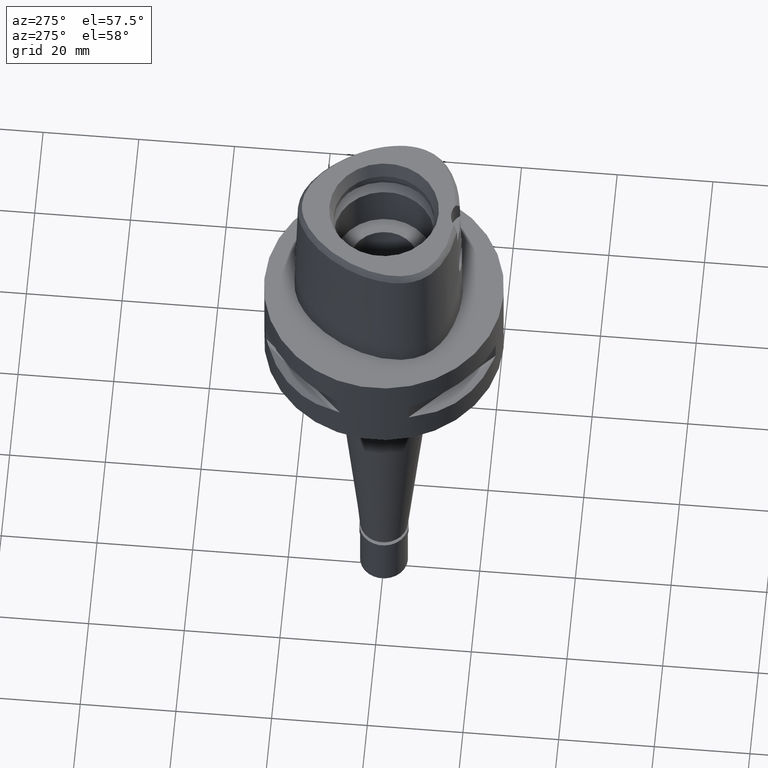
[diagram: clean part render]
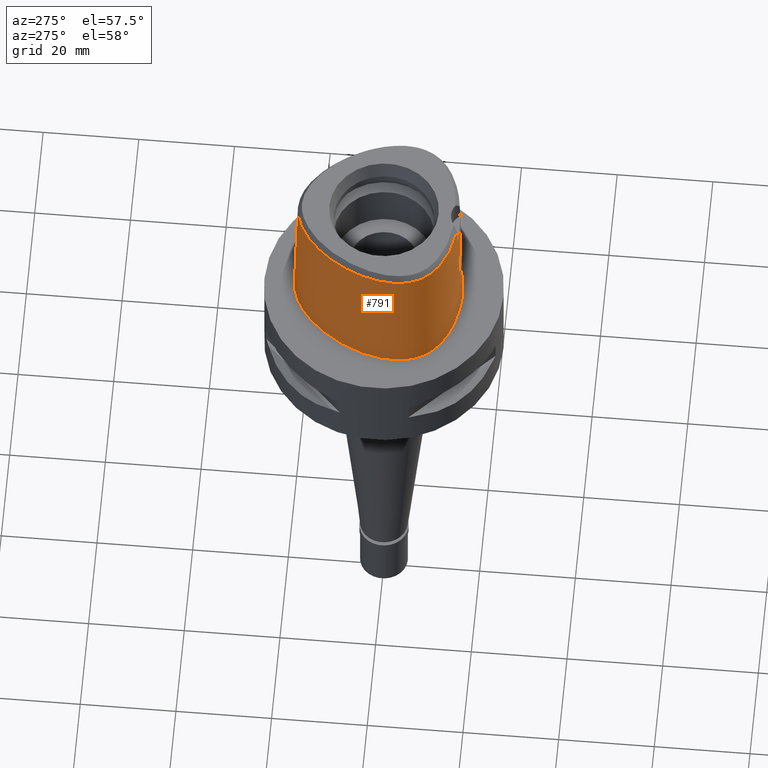
[diagram: same view with one face highlighted and labeled with its STEP entity id]
A machine part, auxiliary view. The second image highlights one B-rep face of the part: STEP entity #791.
In plain terms, the highlighted face is a freeform B-spline surface patch.
Its self-contained STEP definition (entity closure, byte-faithful):
#10 = CARTESIAN_POINT ( 'NONE',  ( -2.909137552898870105, -15.97627371699419641, 13.08234413149512854 ) ) ;
#34 = CARTESIAN_POINT ( 'NONE',  ( -1.489022098419195084, -16.13222843889010960, 11.33656707562938237 ) ) ;
#98 = CARTESIAN_POINT ( 'NONE',  ( 0.5455910026251999945, 18.19844126409000040, 19.20396003619000069 ) ) ;
#117 = CARTESIAN_POINT ( 'NONE',  ( -14.61870768872000070, -11.12154150887000092, 9.316772690826001124 ) ) ;
#125 = CARTESIAN_POINT ( 'NONE',  ( -0.4893119563082999890, 18.72969240675000080, -0.5704146545403999680 ) ) ;
#140 = CARTESIAN_POINT ( 'NONE',  ( -11.33338053121714850, -13.08225253589606574, 28.52071192347005635 ) ) ;
#149 = CARTESIAN_POINT ( 'NONE',  ( -10.90668507664999964, 11.98047076235999953, 29.09114738155999547 ) ) ;
#160 = CARTESIAN_POINT ( 'NONE',  ( -2.169052023958372821, -15.77399788493553601, 24.70000016923101427 ) ) ;
#166 = CARTESIAN_POINT ( 'NONE',  ( -13.75951393052431904, 7.944084103041955558, 28.52071192347005635 ) ) ;
#177 = CARTESIAN_POINT ( 'NONE',  ( -15.57503092496000008, -8.992248296096999383, 29.09114738155999547 ) ) ;
#191 = CARTESIAN_POINT ( 'NONE',  ( -1.671121799477684799, -15.99125384014662998, 16.55147925626985028 ) ) ;
#201 = CARTESIAN_POINT ( 'NONE',  ( 0.3838142945827999752, 18.70350312408000093, -0.5704146545403999680 ) ) ;
#214 = CARTESIAN_POINT ( 'NONE',  ( -5.051093166673528145, -16.15562499497977456, 2.029682833479609649E-07 ) ) ;
#233 = CARTESIAN_POINT ( 'NONE',  ( -2.030787586191847627, -15.97439197203208749, 16.27657083949370431 ) ) ;
#252 = ORIENTED_EDGE ( 'NONE', *, *, #2466, .F. ) ;
#260 = CARTESIAN_POINT ( 'NONE',  ( -2.663989615084545459, -15.94049756288791464, 15.48802251321090040 ) ) ;
#262 = CARTESIAN_POINT ( 'NONE',  ( -16.85489160761226657, -5.354527567565032342, 28.52071192347005635 ) ) ;
#281 = CARTESIAN_POINT ( 'NONE',  ( -2.816407481552833936, -15.93333177460183236, 15.17063687595672228 ) ) ;
#335 = VECTOR ( 'NONE', #1950, 1000.000000000000227 ) ;
#347 = B_SPLINE_CURVE_WITH_KNOTS ( 'NONE', 3,
 ( #4637, #2793, #160, #2408 ),
 .UNSPECIFIED., .F., .F.,
 ( 4, 4 ),
 ( 0.0000000000000000000, 1.000000000000000000 ),
 .UNSPECIFIED. ) ;
#357 = CARTESIAN_POINT ( 'NONE',  ( -1.185240961618587940, -16.15026635704341729, 11.18970954940020057 ) ) ;
#380 = CARTESIAN_POINT ( 'NONE',  ( -1.824495776585495221, -16.10763072133384100, 11.54770719424339376 ) ) ;
#381 = B_SPLINE_CURVE_WITH_KNOTS ( 'NONE', 3,
 ( #1035, #2798, #4642, #4624, #2458, #4267, #2162, #2437, #3225, #3247, #1679, #3200, #1326, #2528, #2480, #1351, #651, #2850, #4708, #191, #4317, #965, #602, #1008, #233, #1721, #4336, #2117, #3625, #985, #4686, #3957, #260, #1750, #2870, #2895, #2504, #3982, #2140, #281, #1771, #1397, #1898, #3365, #1870, #763, #4075, #4454, #3319, #4118, #1468, #4734, #10, #3713, #3341, #3388, #2252, #2969, #2547, #1520, #2944, #1445, #1424, #2572, #4027, #4404, #695, #1498, #1085, #1134, #2210, #1798, #2185, #4431, #3736, #4053, #3645, #380, #721, #34, #3694, #3012, #2992, #4384, #357, #2621, #4476, #1847, #1826, #1114 ),
 .UNSPECIFIED., .F., .F.,
 ( 4, 2, 2, 1, 1, 1, 2, 2, 2, 2, 1, 2, 2, 2, 1, 1, 2, 2, 2, 2, 1, 1, 1, 2, 2, 2, 2, 2, 2, 2, 2, 1, 1, 1, 2, 2, 2, 2, 1, 2, 2, 2, 1, 1, 2, 2, 2, 2, 1, 1, 1, 2, 2, 4 ),
 ( 0.0000000000000000000, 0.06250000000000736911, 0.09375000000001104672, 0.1093750000000127537, 0.1171875000000137945, 0.1210937500000142802, 0.1230468750000145439, 0.1250000000000148215, 0.1562500000000162648, 0.1718750000000169864, 0.1796875000000173195, 0.1835937500000175138, 0.1875000000000176803, 0.2187500000000204003, 0.2343750000000213718, 0.2421875000000217881, 0.2460937500000216771, 0.2500000000000215938, 0.3125000000000265343, 0.3437500000000289768, 0.3593750000000301981, 0.3671875000000308642, 0.3710937500000308642, 0.3730468750000309197, 0.3750000000000309752, 0.4375000000000368594, 0.4687500000000398570, 0.4843750000000410227, 0.5000000000000421885, 0.5625000000000462963, 0.5937500000000484057, 0.6093750000000496270, 0.6171875000000502931, 0.6210937500000507372, 0.6230468750000508482, 0.6250000000000509592, 0.6562500000000468514, 0.6718750000000450751, 0.6796875000000439648, 0.6835937500000434097, 0.6875000000000428546, 0.7187500000000383027, 0.7343750000000360822, 0.7421875000000348610, 0.7460937500000341949, 0.7500000000000335287, 0.8125000000000281997, 0.8437500000000254241, 0.8593750000000240918, 0.8671875000000232037, 0.8710937500000227596, 0.8730468750000225375, 0.8750000000000223155, 1.000000000000000000 ),
 .UNSPECIFIED. ) ;
#422 = EDGE_CURVE ( 'NONE', #3466, #439, #347, .T. ) ;
#439 = VERTEX_POINT ( 'NONE', #1320 ) ;
#462 = CARTESIAN_POINT ( 'NONE',  ( -5.053620743671999982, -16.16974068377000151, -0.5704146545403999680 ) ) ;
#468 = VERTEX_POINT ( 'NONE', #1226 ) ;
#469 = CARTESIAN_POINT ( 'NONE',  ( -17.51166498438000119, -0.2260900530588000057, -0.5704146545403999680 ) ) ;
#498 = CARTESIAN_POINT ( 'NONE',  ( -11.47659488421999896, 12.46143684779999994, -0.5704146545403999680 ) ) ;
#523 = CARTESIAN_POINT ( 'NONE',  ( -16.21839714699000012, -9.363695958655000595, -0.5704146545403999680 ) ) ;
#546 = CARTESIAN_POINT ( 'NONE',  ( -1.941729206885999925, 18.07741838335000395, 19.20396003619000069 ) ) ;
#562 = CARTESIAN_POINT ( 'NONE',  ( -17.56373942428971446, -5.455996093027935423, 2.029682833479609649E-07 ) ) ;
#571 = CARTESIAN_POINT ( 'NONE',  ( -15.82879756526999948, 3.455165209950000094, 29.09114738155999547 ) ) ;
#602 = CARTESIAN_POINT ( 'NONE',  ( -1.858121229639992933, -15.98284882596957068, 16.42071856142328201 ) ) ;
#603 = CARTESIAN_POINT ( 'NONE',  ( -4.422474562381692564, 17.08283562090188212, 28.52071192347005635 ) ) ;
#651 = CARTESIAN_POINT ( 'NONE',  ( -1.578081282708124311, -15.99520688258736634, 16.61014732800849814 ) ) ;
#695 = CARTESIAN_POINT ( 'NONE',  ( -2.552453281223090453, -16.03022206925511384, 12.33036638904189353 ) ) ;
#711 = CARTESIAN_POINT ( 'NONE',  ( 1.070056061385999957, -15.95437369807999772, 19.20396003619000069 ) ) ;
#721 = CARTESIAN_POINT ( 'NONE',  ( -1.572520811367552396, -16.12649376600628059, 11.38472095010840235 ) ) ;
#763 = CARTESIAN_POINT ( 'NONE',  ( -3.044373801969868065, -15.93377869067413144, 14.19140803545041685 ) ) ;
#770 = ORIENTED_EDGE ( 'NONE', *, *, #1128, .T. ) ;
#791 = ADVANCED_FACE ( 'NONE', ( #3854 ), #887, .T. ) ;
#849 = CARTESIAN_POINT ( 'NONE',  ( -14.43869630108000024, -10.95090977785999975, 19.20396003619000069 ) ) ;
#850 = VERTEX_POINT ( 'NONE', #3771 ) ;
#858 = CARTESIAN_POINT ( 'NONE',  ( -17.72574105905000152, -3.269125760301000216, -0.5704146545403999680 ) ) ;
#875 = CARTESIAN_POINT ( 'NONE',  ( -3.168920966622999824, -15.55911077538999976, 28.52071192346999950 ) ) ;
#876 = CARTESIAN_POINT ( 'NONE',  ( -14.78833380030080491, -11.28232909805913664, 2.029682833479609649E-07 ) ) ;
#878 = CARTESIAN_POINT ( 'NONE',  ( -8.697311552745000895, -14.35163119880000160, 29.09114738155999547 ) ) ;
#885 = CARTESIAN_POINT ( 'NONE',  ( -1.890839663910000024, 17.83402859062000090, 29.09114738155999547 ) ) ;
#887 = B_SPLINE_SURFACE_WITH_KNOTS ( 'NONE', 3, 3, ( 
 ( #3881, #1611, #98, #2741 ),
 ( #201, #1589, #4212, #1641 ),
 ( #125, #955, #1314, #3137 ),
 ( #1243, #3805, #546, #885 ),
 ( #2384, #3079, #2713, #2811 ),
 ( #4566, #4256, #4541, #4279 ),
 ( #498, #2787, #1271, #149 ),
 ( #1219, #3450, #1670, #2768 ),
 ( #1291, #3190, #2064, #571 ),
 ( #469, #4188, #2014, #2040 ),
 ( #858, #1992, #4631, #4238 ),
 ( #2354, #3834, #3529, #4587 ),
 ( #3478, #1966, #4612, #3502 ),
 ( #3104, #1689, #2425, #3859 ),
 ( #523, #907, #2403, #177 ),
 ( #3167, #929, #3904, #3550 ),
 ( #1813, #117, #849, #3443 ),
 ( #1838, #2705, #1458, #2377 ),
 ( #2934, #3075, #1958, #1554 ),
 ( #4557, #1212, #2561, #878 ),
 ( #462, #3310, #4770, #1193 ),
 ( #4180, #3417, #3828, #2960 ),
 ( #1582, #3332, #3853, #1604 ),
 ( #4042, #4748, #711, #4514 ) ),
 .UNSPECIFIED., .F., .F., .F.,
 ( 4, 1, 1, 1, 1, 1, 1, 1, 1, 1, 1, 1, 1, 1, 1, 1, 1, 1, 1, 1, 1, 4 ),
 ( 4, 4 ),
 ( -0.01173812893898000011, 0.0000000000000000000, 0.04166666666808999803, 0.08333333333469000737, 0.1666666666679000042, 0.2500000000011000090, 0.3333333333342999860, 0.4166666666675999942, 0.5000000000008000267, 0.5416666666674000430, 0.5833333333340000593, 0.6250000000005999645, 0.6458333333339000282, 0.6666666666671999808, 0.6875000000005000445, 0.7083333333337999971, 0.7500000000004000134, 0.7916666666671000607, 0.8333333333336000459, 0.9166666666668999985, 1.000000000000000000, 1.017968513185000035 ),
 ( 2.976256088805000265E-09, 0.9999998482109999642 ),
 .UNSPECIFIED. ) ;
#901 = CARTESIAN_POINT ( 'NONE',  ( -11.46563507632830614, 12.45218749671191993, 2.029682833479609649E-07 ) ) ;
#907 = CARTESIAN_POINT ( 'NONE',  ( -16.00394173963999833, -9.239880071135999628, 9.316772690826001124 ) ) ;
#919 = CARTESIAN_POINT ( 'NONE',  ( -15.07117015427825635, -9.793013966485284882, 28.52071192347005635 ) ) ;
#921 = CARTESIAN_POINT ( 'NONE',  ( -16.51672824299801690, 3.703437498268175254, 2.029682833479609649E-07 ) ) ;
#929 = CARTESIAN_POINT ( 'NONE',  ( -15.46013588941000094, -10.07579657169000065, 9.316772690826001124 ) ) ;
#945 = CARTESIAN_POINT ( 'NONE',  ( 6.780366540744270521E-08, -15.90128720080213220, 22.15000025259013938 ) ) ;
#955 = CARTESIAN_POINT ( 'NONE',  ( -0.4764648017700000016, 18.48199783608000146, 9.316772690826001124 ) ) ;
#965 = CARTESIAN_POINT ( 'NONE',  ( -1.777739861706824076, -15.98655714082976687, 16.48034954023876608 ) ) ;
#985 = CARTESIAN_POINT ( 'NONE',  ( -2.319868985701433406, -15.95889227881311712, 15.99336665119352041 ) ) ;
#1008 = CARTESIAN_POINT ( 'NONE',  ( -1.974011923642957633, -15.97722169910667844, 16.32556985268770688 ) ) ;
#1021 = B_SPLINE_CURVE_WITH_KNOTS ( 'NONE', 3,
 ( #2055, #945, #4250, #4626 ),
 .UNSPECIFIED., .F., .F.,
 ( 4, 4 ),
 ( 0.0000000000000000000, 1.000000000000000000 ),
 .UNSPECIFIED. ) ;
#1022 = VERTEX_POINT ( 'NONE', #4366 ) ;
#1035 = CARTESIAN_POINT ( 'NONE',  ( 0.0000000000000000000, -16.02877864023999877, 17.05000000000000071 ) ) ;
#1085 = CARTESIAN_POINT ( 'NONE',  ( -2.481413756882685284, -16.03938740154340081, 12.22374741087822336 ) ) ;
#1114 = CARTESIAN_POINT ( 'NONE',  ( -2.134935272453999757E-12, -16.18126839358999902, 10.94999999999999929 ) ) ;
#1128 = EDGE_CURVE ( 'NONE', #850, #3017, #1182, .T. ) ;
#1134 = CARTESIAN_POINT ( 'NONE',  ( -2.421847348362371921, -16.04659734725418474, 12.14335169878005516 ) ) ;
#1182 = LINE ( 'NONE', #1205, #335 ) ;
#1193 = CARTESIAN_POINT ( 'NONE',  ( -4.922186786519999302, -15.43572512786000139, 29.09114738155999547 ) ) ;
#1205 = CARTESIAN_POINT ( 'NONE',  ( -3.096462930624999809E-11, 17.98202997909999823, 28.52071728569000086 ) ) ;
#1212 = CARTESIAN_POINT ( 'NONE',  ( -8.866858744626000544, -14.81887821073000033, 9.316772690826001124 ) ) ;
#1219 = CARTESIAN_POINT ( 'NONE',  ( -14.39249255128000016, 8.309508948164999964, -0.5704146545403999680 ) ) ;
#1226 = CARTESIAN_POINT ( 'NONE',  ( -2.134935272453999757E-12, -16.18126839358999902, 10.94999999999999929 ) ) ;
#1227 = CARTESIAN_POINT ( 'NONE',  ( -3.168920966622999824, -15.55911077538999976, 28.52071192346999950 ) ) ;
#1235 = CARTESIAN_POINT ( 'NONE',  ( -0.6801907855047764073, 18.69499999492899178, 2.029682833479609649E-07 ) ) ;
#1243 = CARTESIAN_POINT ( 'NONE',  ( -2.043508292838999818, 18.56419796881000295, -0.5704146545403999680 ) ) ;
#1260 = CARTESIAN_POINT ( 'NONE',  ( -0.6295828121025521806, 17.98203011041698218, 28.52071192347005990 ) ) ;
#1271 = CARTESIAN_POINT ( 'NONE',  ( -11.09665501250999853, 12.14079279084000085, 19.20396003619000069 ) ) ;
#1291 = CARTESIAN_POINT ( 'NONE',  ( -16.53021708470999940, 3.708305584119000020, -0.5704146545403999680 ) ) ;
#1314 = CARTESIAN_POINT ( 'NONE',  ( -0.4636176472317999897, 18.23430326540000124, 19.20396003619000069 ) ) ;
#1320 = CARTESIAN_POINT ( 'NONE',  ( -3.235121119988999983, -15.64755630481999837, 24.69999999999999929 ) ) ;
#1326 = CARTESIAN_POINT ( 'NONE',  ( -1.246904710691675744, -16.00770134240460862, 16.78481881917089780 ) ) ;
#1351 = CARTESIAN_POINT ( 'NONE',  ( -1.509334869935612611, -15.99801316580332866, 16.65089544972465418 ) ) ;
#1397 = CARTESIAN_POINT ( 'NONE',  ( -2.955918695230267623, -15.92874700794742004, 14.77770287553832418 ) ) ;
#1424 = CARTESIAN_POINT ( 'NONE',  ( -2.651693848328394498, -16.01689519106131954, 12.49206992028392804 ) ) ;
#1445 = CARTESIAN_POINT ( 'NONE',  ( -2.676760126934970341, -16.01335860443711923, 12.53714519679345862 ) ) ;
#1458 = CARTESIAN_POINT ( 'NONE',  ( -13.20908636779000034, -12.10346125555999919, 19.20396003619000069 ) ) ;
#1468 = CARTESIAN_POINT ( 'NONE',  ( -2.977125115133146593, -15.96287852150367748, 13.32982323607296493 ) ) ;
#1498 = CARTESIAN_POINT ( 'NONE',  ( -2.543826128444697243, -16.03134158490992078, 12.31726274100100582 ) ) ;
#1520 = CARTESIAN_POINT ( 'NONE',  ( -2.785351805582333640, -15.99721084885890754, 12.75429401941610230 ) ) ;
#1554 = CARTESIAN_POINT ( 'NONE',  ( -11.32630897547000082, -13.06981821781999997, 29.09114738155999547 ) ) ;
#1582 = CARTESIAN_POINT ( 'NONE',  ( 0.7264497205195000751, -16.46229665887999971, -0.5704146545403999680 ) ) ;
#1589 = CARTESIAN_POINT ( 'NONE',  ( 0.3738602563566000292, 18.45648977899000087, 9.316772690826001124 ) ) ;
#1604 = CARTESIAN_POINT ( 'NONE',  ( 0.7074880720862999350, -15.72098116921000255, 29.09114738155999547 ) ) ;
#1611 = CARTESIAN_POINT ( 'NONE',  ( 0.5606135758495001120, 18.44514043155999872, 9.316772690826001124 ) ) ;
#1641 = CARTESIAN_POINT ( 'NONE',  ( 0.3539521799041999706, 17.96246308882000164, 29.09114738155999547 ) ) ;
#1670 = CARTESIAN_POINT ( 'NONE',  ( -13.96223226609000001, 8.061115411757999283, 19.20396003619000069 ) ) ;
#1679 = CARTESIAN_POINT ( 'NONE',  ( -1.154649350553812903, -16.01059875151096534, 16.82300001247267218 ) ) ;
#1680 = CARTESIAN_POINT ( 'NONE',  ( -1.893775706183291163, 17.84807082153813340, 28.52071192347005635 ) ) ;
#1689 = CARTESIAN_POINT ( 'NONE',  ( -16.45596374023000052, -8.350972142328000558, 9.316772690826001124 ) ) ;
#1721 = CARTESIAN_POINT ( 'NONE',  ( -2.094858927817060401, -15.97106233740288417, 16.21701581232785472 ) ) ;
#1750 = CARTESIAN_POINT ( 'NONE',  ( -2.727932080409432025, -15.93733995233615985, 15.36492654818794179 ) ) ;
#1763 = ORIENTED_EDGE ( 'NONE', *, *, #4409, .T. ) ;
#1771 = CARTESIAN_POINT ( 'NONE',  ( -2.897875851390566915, -15.92997726602836117, 14.97345579577239860 ) ) ;
#1798 = CARTESIAN_POINT ( 'NONE',  ( -2.277845221344342974, -16.06297226044945603, 11.97064251377645760 ) ) ;
#1813 = CARTESIAN_POINT ( 'NONE',  ( -14.79871907635999939, -11.29217323989000121, -0.5704146545403999680 ) ) ;
#1826 = CARTESIAN_POINT ( 'NONE',  ( -0.3804472261489211249, -16.18126839358999902, 10.94999999999999929 ) ) ;
#1838 = CARTESIAN_POINT ( 'NONE',  ( -13.51574691203999912, -12.49390941197000160, -0.5704146545403999680 ) ) ;
#1843 = B_SPLINE_CURVE_WITH_KNOTS ( 'NONE', 3,
 ( #1227, #2774, #3487, #4225 ),
 .UNSPECIFIED., .F., .F.,
 ( 4, 4 ),
 ( 0.0000000000000000000, 1.000000000000000000 ),
 .UNSPECIFIED. ) ;
#1847 = CARTESIAN_POINT ( 'NONE',  ( -0.7803301224165142269, -16.17127761896326277, 11.02218832487896449 ) ) ;
#1870 = CARTESIAN_POINT ( 'NONE',  ( -3.040936525959756054, -15.93294854341572453, 14.23999838212162317 ) ) ;
#1898 = CARTESIAN_POINT ( 'NONE',  ( -3.012997481775659736, -15.92993551890236503, 14.48403558616245412 ) ) ;
#1914 = VERTEX_POINT ( 'NONE', #2599 ) ;
#1950 = DIRECTION ( 'NONE',  ( 3.623367742262889857E-12, 0.02499051285796925065, -0.9996876883642689116 ) ) ;
#1958 = CARTESIAN_POINT ( 'NONE',  ( -11.44887813821000044, -13.28533853757999950, 19.20396003619000069 ) ) ;
#1966 = CARTESIAN_POINT ( 'NONE',  ( -16.94089131377999990, -7.099401463933999956, 9.316772690826001124 ) ) ;
#1985 = CARTESIAN_POINT ( 'NONE',  ( -2.040572356622624817, 18.55015624500224902, 2.029682833479609649E-07 ) ) ;
#1992 = CARTESIAN_POINT ( 'NONE',  ( -17.47781019954000215, -3.270737581748999645, 9.316772690826001124 ) ) ;
#2008 = CARTESIAN_POINT ( 'NONE',  ( -16.66912841674942314, -8.445800779184096996, 2.029682833479609649E-07 ) ) ;
#2014 = CARTESIAN_POINT ( 'NONE',  ( -17.02224579261000059, -0.3128848803539999723, 19.20396003619000069 ) ) ;
#2031 = CARTESIAN_POINT ( 'NONE',  ( -14.26907056455488920, -10.79012254419288652, 28.52071192347005635 ) ) ;
#2033 = CARTESIAN_POINT ( 'NONE',  ( -17.71143735052711676, -3.269218750033009435, 2.029682833479609649E-07 ) ) ;
#2040 = CARTESIAN_POINT ( 'NONE',  ( -16.77753619671999985, -0.3562822940015999973, 29.09114738155999547 ) ) ;
#2055 = CARTESIAN_POINT ( 'NONE',  ( 2.029620734289000178E-07, -15.83752876601000281, 24.70000006102999990 ) ) ;
#2064 = CARTESIAN_POINT ( 'NONE',  ( -16.06260407174999827, 3.539545334672999477, 19.20396003619000069 ) ) ;
#2075 = CARTESIAN_POINT ( 'NONE',  ( -17.49754711805516649, -0.2285937508908879867, 2.029682833479609649E-07 ) ) ;
#2087 = EDGE_CURVE ( 'NONE', #3466, #3799, #1021, .T. ) ;
#2096 = CARTESIAN_POINT ( 'NONE',  ( -3.096462930624999809E-11, 17.98202997909999823, 28.52071728569000086 ) ) ;
#2117 = CARTESIAN_POINT ( 'NONE',  ( -2.139722381400865014, -15.96867257770621862, 16.17353267031646880 ) ) ;
#2140 = CARTESIAN_POINT ( 'NONE',  ( -2.814800487491001313, -15.93339868692383554, 15.17448999603460891 ) ) ;
#2162 = CARTESIAN_POINT ( 'NONE',  ( -0.9942354941236161148, -16.01528989706931583, 16.88423654523026585 ) ) ;
#2175 = EDGE_CURVE ( 'NONE', #3017, #1914, #3127, .T. ) ;
#2185 = CARTESIAN_POINT ( 'NONE',  ( -2.218346767529144614, -16.06939536445589312, 11.90655067609831974 ) ) ;
#2210 = CARTESIAN_POINT ( 'NONE',  ( -2.326795673539264531, -16.05749942887522508, 12.02743345691529697 ) ) ;
#2252 = CARTESIAN_POINT ( 'NONE',  ( -2.828519626697922007, -15.99018834924778609, 12.85893844538365194 ) ) ;
#2256 = ORIENTED_EDGE ( 'NONE', *, *, #3920, .F. ) ;
#2303 = CARTESIAN_POINT ( 'NONE',  ( 2.029620734289000178E-07, -15.83752876601000281, 24.70000006102999990 ) ) ;
#2354 = CARTESIAN_POINT ( 'NONE',  ( -17.57791639611000178, -5.458025465753999939, -0.5704146545403999680 ) ) ;
#2374 = CARTESIAN_POINT ( 'NONE',  ( -3.738627773282400923, -15.49270868799979262, 28.52071192347005635 ) ) ;
#2376 = CARTESIAN_POINT ( 'NONE',  ( -14.38008119248296168, 8.302343747449878464, 2.029682833479609649E-07 ) ) ;
#2377 = CARTESIAN_POINT ( 'NONE',  ( -13.05575609567000051, -11.90823717736000020, 29.09114738155999547 ) ) ;
#2384 = CARTESIAN_POINT ( 'NONE',  ( -4.735056264175000251, 17.74784407833999822, -0.5704146545403999680 ) ) ;
#2396 = CARTESIAN_POINT ( 'NONE',  ( -16.47905549557562921, -6.962316292879772384, 28.52071192347005635 ) ) ;
#2397 = CARTESIAN_POINT ( 'NONE',  ( -8.946741554444578526, -15.03902343270407904, 2.029682833479609649E-07 ) ) ;
#2403 = CARTESIAN_POINT ( 'NONE',  ( -15.78948633230000276, -9.116064183615998573, 19.20396003619000069 ) ) ;
#2408 = CARTESIAN_POINT ( 'NONE',  ( -3.235121119988999983, -15.64755630481999837, 24.69999999999999929 ) ) ;
#2415 = CARTESIAN_POINT ( 'NONE',  ( -7.523733151595097368, 15.26501052509751233, 28.52071192347005635 ) ) ;
#2425 = CARTESIAN_POINT ( 'NONE',  ( -16.22974816022000155, -8.250337668369001065, 19.20396003619000069 ) ) ;
#2437 = CARTESIAN_POINT ( 'NONE',  ( -1.080687980687549121, -16.01283629952125409, 16.85233897233317535 ) ) ;
#2458 = CARTESIAN_POINT ( 'NONE',  ( -0.7716804096297652515, -16.02065638628776512, 16.95256773572822340 ) ) ;
#2459 = CARTESIAN_POINT ( 'NONE',  ( -15.58740380354039345, -8.999391780896928594, 28.52071192347005635 ) ) ;
#2466 = EDGE_CURVE ( 'NONE', #468, #1914, #4688, .T. ) ;
#2480 = CARTESIAN_POINT ( 'NONE',  ( -1.464230115301246249, -15.99978155752979703, 16.67600899017520177 ) ) ;
#2487 = CARTESIAN_POINT ( 'NONE',  ( 0.0000000000000000000, -16.02877864023999877, 17.05000000000000071 ) ) ;
#2504 = CARTESIAN_POINT ( 'NONE',  ( -2.804416461970883123, -15.93383585885217002, 15.19914549895946543 ) ) ;
#2528 = CARTESIAN_POINT ( 'NONE',  ( -1.331640452540528097, -16.00477934145670034, 16.74576209628074963 ) ) ;
#2547 = CARTESIAN_POINT ( 'NONE',  ( -2.820449305715879706, -15.99150796465939628, 12.83914045378484481 ) ) ;
#2561 = CARTESIAN_POINT ( 'NONE',  ( -8.782085148685000675, -14.58525470476999963, 19.20396003619000069 ) ) ;
#2572 = CARTESIAN_POINT ( 'NONE',  ( -2.611019405680440997, -16.02245593392142808, 12.42336243517923755 ) ) ;
#2579 = EDGE_CURVE ( 'NONE', #1022, #439, #1843, .T. ) ;
#2599 = CARTESIAN_POINT ( 'NONE',  ( -1.725917281062000170E-11, -16.45500000000000185, 1.585398479164999957E-13 ) ) ;
#2621 = CARTESIAN_POINT ( 'NONE',  ( -1.175386497640449335, -16.15078445366180659, 11.18557374674775495 ) ) ;
#2683 = CARTESIAN_POINT ( 'NONE',  ( -5.902447850708282928, -15.16907854011943080, 28.52071192347005990 ) ) ;
#2705 = CARTESIAN_POINT ( 'NONE',  ( -13.36241663992000106, -12.29868533375999817, 9.316772690826001124 ) ) ;
#2713 = CARTESIAN_POINT ( 'NONE',  ( -4.522582275717999423, 17.29581186244999813, 19.20396003619000069 ) ) ;
#2732 = CARTESIAN_POINT ( 'NONE',  ( -4.728927204634815418, 17.73480468285698919, 2.029682833479609649E-07 ) ) ;
#2741 = CARTESIAN_POINT ( 'NONE',  ( 0.5305684294009000990, 17.95174209661000120, 29.09114738155999547 ) ) ;
#2768 = CARTESIAN_POINT ( 'NONE',  ( -13.74710212349000038, 7.936918643555000763, 29.09114738155999547 ) ) ;
#2774 = CARTESIAN_POINT ( 'NONE',  ( -3.191384176940533557, -15.58827403572775339, 27.24714128231333277 ) ) ;
#2787 = CARTESIAN_POINT ( 'NONE',  ( -11.28662494836000008, 12.30111481931999862, 9.316772690826001124 ) ) ;
#2793 = CARTESIAN_POINT ( 'NONE',  ( -1.084489118009179132, -15.83754148632432113, 24.70000016923101427 ) ) ;
#2798 = CARTESIAN_POINT ( 'NONE',  ( -0.1860095695866119669, -16.02877864024000232, 17.05000000000000426 ) ) ;
#2803 = CARTESIAN_POINT ( 'NONE',  ( -13.50690093165466799, -12.48264648037333302, 2.029682833479609649E-07 ) ) ;
#2811 = CARTESIAN_POINT ( 'NONE',  ( -4.416345281489999941, 17.06979575449999942, 29.09114738155999547 ) ) ;
#2828 = CARTESIAN_POINT ( 'NONE',  ( -10.91764528035608528, 11.98972044748918542, 28.52071192347005635 ) ) ;
#2829 = CARTESIAN_POINT ( 'NONE',  ( -11.68694516332346467, -13.70394530808360756, 2.029682833479609649E-07 ) ) ;
#2850 = CARTESIAN_POINT ( 'NONE',  ( -1.612726137501564239, -15.99376531707280513, 16.58900383220828445 ) ) ;
#2870 = CARTESIAN_POINT ( 'NONE',  ( -2.757857542925166161, -15.93590525390323975, 15.30389640928038730 ) ) ;
#2873 = CARTESIAN_POINT ( 'NONE',  ( -2.134935272453999757E-12, -16.18126839358999902, 10.94999999999999929 ) ) ;
#2886 = ORIENTED_EDGE ( 'NONE', *, *, #2087, .F. ) ;
#2895 = CARTESIAN_POINT ( 'NONE',  ( -2.789432624430872920, -15.93448362604000401, 15.23385107219728596 ) ) ;
#2927 = ORIENTED_EDGE ( 'NONE', *, *, #422, .T. ) ;
#2934 = CARTESIAN_POINT ( 'NONE',  ( -11.69401646368999970, -13.71637917710999943, -0.5704146545403999680 ) ) ;
#2944 = CARTESIAN_POINT ( 'NONE',  ( -2.746377481656820940, -16.00326057041211314, 12.66963668950853439 ) ) ;
#2960 = CARTESIAN_POINT ( 'NONE',  ( -1.286803364240000080, -15.75925587462999999, 29.09114738155999547 ) ) ;
#2969 = CARTESIAN_POINT ( 'NONE',  ( -2.823487070365239493, -15.99101270351570570, 12.84654193248338849 ) ) ;
#2992 = CARTESIAN_POINT ( 'NONE',  ( -1.234760267102214648, -16.14760890805742832, 11.21096960602456072 ) ) ;
#3012 = CARTESIAN_POINT ( 'NONE',  ( -1.304824586066291037, -16.14367980511035583, 11.24258093298051975 ) ) ;
#3017 = VERTEX_POINT ( 'NONE', #3397 ) ;
#3075 = CARTESIAN_POINT ( 'NONE',  ( -11.57144730095000185, -13.50085885734000080, 9.316772690826001124 ) ) ;
#3079 = CARTESIAN_POINT ( 'NONE',  ( -4.628819269946999881, 17.52182797038999951, 9.316772690826001124 ) ) ;
#3104 = CARTESIAN_POINT ( 'NONE',  ( -16.68217932023999950, -8.451606616285999962, -0.5704146545403999680 ) ) ;
#3127 = B_SPLINE_CURVE_WITH_KNOTS ( 'NONE', 3,
 ( #3204, #1235, #1985, #2732, #3157, #901, #2376, #921, #2075, #2033, #562, #4646, #2008, #4605, #3561, #876, #2803, #2829, #2397, #214, #3543, #3852 ),
 .UNSPECIFIED., .F., .F.,
 ( 4, 1, 1, 1, 1, 1, 1, 1, 1, 1, 1, 1, 1, 1, 1, 1, 1, 1, 1, 4 ),
 ( 0.0000000000000000000, 0.04166666666808999803, 0.08333333333469000737, 0.1666666666679000042, 0.2500000000011000090, 0.3333333333342999860, 0.4166666666675999942, 0.5000000000008000267, 0.5416666666674000430, 0.5833333333340000593, 0.6250000000005999645, 0.6458333333339000282, 0.6666666666671999808, 0.6875000000005000445, 0.7083333333337999971, 0.7500000000004000134, 0.7916666666671000607, 0.8333333333336000459, 0.9166666666668999985, 1.000000000000000000 ),
 .UNSPECIFIED. ) ;
#3137 = CARTESIAN_POINT ( 'NONE',  ( -0.4507704926935000023, 17.98660869473000190, 29.09114738155999547 ) ) ;
#3155 = CARTESIAN_POINT ( 'NONE',  ( -16.79165457291277974, -0.3537785057482520368, 28.52071192347005635 ) ) ;
#3157 = CARTESIAN_POINT ( 'NONE',  ( -7.967839661064138213, 15.83070312097366283, 2.029682833479609649E-07 ) ) ;
#3167 = CARTESIAN_POINT ( 'NONE',  ( -15.66039569275000076, -10.22138777366999918, -0.5704146545403999680 ) ) ;
#3190 = CARTESIAN_POINT ( 'NONE',  ( -16.29641057822999883, 3.623925459396000193, 9.316772690826001124 ) ) ;
#3200 = CARTESIAN_POINT ( 'NONE',  ( -1.161963448143888522, -16.01037049747070284, 16.81999471490709652 ) ) ;
#3204 = CARTESIAN_POINT ( 'NONE',  ( 7.240870238724000154E-11, 18.69499999997999851, 1.573926174576999759E-13 ) ) ;
#3225 = CARTESIAN_POINT ( 'NONE',  ( -1.123850819245596266, -16.01154604563820527, 16.83544840130035425 ) ) ;
#3247 = CARTESIAN_POINT ( 'NONE',  ( -1.142332392166276245, -16.01097948216497713, 16.82800652385433793 ) ) ;
#3310 = CARTESIAN_POINT ( 'NONE',  ( -5.009809424620999430, -15.92506883180000088, 9.316772690826001124 ) ) ;
#3319 = CARTESIAN_POINT ( 'NONE',  ( -3.049900212867938443, -15.94261167837596460, 13.81468546120410501 ) ) ;
#3321 = DIRECTION ( 'NONE',  ( -1.380777539977966434E-12, -0.02499051295371941192, -0.9996876883618752707 ) ) ;
#3332 = CARTESIAN_POINT ( 'NONE',  ( 0.7201291710417000447, -16.21519149566000095, 9.316772690826001124 ) ) ;
#3341 = CARTESIAN_POINT ( 'NONE',  ( -2.852964108056666781, -15.98613240798089485, 12.92095709856995711 ) ) ;
#3365 = CARTESIAN_POINT ( 'NONE',  ( -3.027041479269456214, -15.93083733890007458, 14.38613028388217785 ) ) ;
#3388 = CARTESIAN_POINT ( 'NONE',  ( -2.835998777458424325, -15.98895818849809736, 12.87753709205154706 ) ) ;
#3392 = ORIENTED_EDGE ( 'NONE', *, *, #2175, .T. ) ;
#3397 = CARTESIAN_POINT ( 'NONE',  ( 7.240870238724000154E-11, 18.69499999997999851, 1.573926174576999759E-13 ) ) ;
#3417 = CARTESIAN_POINT ( 'NONE',  ( -1.309813752756000094, -16.25411918826999624, 9.316772690826001124 ) ) ;
#3419 = ORIENTED_EDGE ( 'NONE', *, *, #2579, .F. ) ;
#3443 = CARTESIAN_POINT ( 'NONE',  ( -14.25868491342999889, -10.78027804684000124, 29.09114738155999547 ) ) ;
#3450 = CARTESIAN_POINT ( 'NONE',  ( -14.17736240868000053, 8.185312179962000556, 9.316772690826001124 ) ) ;
#3466 = VERTEX_POINT ( 'NONE', #2303 ) ;
#3478 = CARTESIAN_POINT ( 'NONE',  ( -17.17866842825999996, -7.169980044299999911, -0.5704146545403999680 ) ) ;
#3487 = CARTESIAN_POINT ( 'NONE',  ( -3.213444811939455636, -15.61774738279276953, 25.97357064115666603 ) ) ;
#3502 = CARTESIAN_POINT ( 'NONE',  ( -16.46533708481999980, -6.958244303201000847, 29.09114738155999547 ) ) ;
#3519 = CARTESIAN_POINT ( 'NONE',  ( -16.99625270563253920, -3.273868231552714558, 28.52071192347005635 ) ) ;
#3529 = CARTESIAN_POINT ( 'NONE',  ( -17.08644821456000074, -5.387673902949999594, 19.20396003619000069 ) ) ;
#3543 = CARTESIAN_POINT ( 'NONE',  ( -1.683697722227928129, -16.45499999492937349, 2.029682833479609649E-07 ) ) ;
#3550 = CARTESIAN_POINT ( 'NONE',  ( -15.05961628272000041, -9.784614167725999678, 29.09114738155999547 ) ) ;
#3560 = CARTESIAN_POINT ( 'NONE',  ( -16.01658395503506682, -8.155509241190266323, 28.52071192347005635 ) ) ;
#3561 = CARTESIAN_POINT ( 'NONE',  ( -15.64884223844629396, -10.21298827825931888, 2.029682833479609649E-07 ) ) ;
#3625 = CARTESIAN_POINT ( 'NONE',  ( -2.147290074988738695, -15.96826519308855374, 16.16606823402860016 ) ) ;
#3645 = CARTESIAN_POINT ( 'NONE',  ( -1.994661405231582751, -16.09284332352423519, 11.68121651172264386 ) ) ;
#3694 = CARTESIAN_POINT ( 'NONE',  ( -1.365876440253121826, -16.14000093520535728, 11.27254294479051566 ) ) ;
#3713 = CARTESIAN_POINT ( 'NONE',  ( -2.884965141856917992, -15.98065922520810034, 13.00785839096532825 ) ) ;
#3736 = CARTESIAN_POINT ( 'NONE',  ( -2.174903967716017128, -16.07399873101336851, 11.86167149722170677 ) ) ;
#3771 = CARTESIAN_POINT ( 'NONE',  ( -3.096462930624999809E-11, 17.98202997909999823, 28.52071728569000086 ) ) ;
#3797 = B_SPLINE_CURVE_WITH_KNOTS ( 'NONE', 3,
 ( #875, #2374, #2683, #4154, #140, #3939, #2031, #919, #2459, #3560, #2396, #262, #3519, #3155, #3896, #166, #2828, #2415, #603, #1680, #1260, #2096 ),
 .UNSPECIFIED., .F., .F.,
 ( 4, 1, 1, 1, 1, 1, 1, 1, 1, 1, 1, 1, 1, 1, 1, 1, 1, 1, 1, 4 ),
 ( 0.0000000000000000000, 0.03108635432772576673, 0.1191694130251475386, 0.1632109423736998743, 0.2072524717224636936, 0.2512940010711217642, 0.2733147657454507717, 0.2953355304197798348, 0.3173562950941088423, 0.3393770597684379053, 0.3834185891170958649, 0.4274601184657539910, 0.4715016478144120615, 0.5595847065117282026, 0.6476677652091500370, 0.7357508239064661781, 0.8238338826037823193, 0.9119169413011088965, 0.9559584706497669115, 1.000000000000000000 ),
 .UNSPECIFIED. ) ;
#3799 = VERTEX_POINT ( 'NONE', #2487 ) ;
#3805 = CARTESIAN_POINT ( 'NONE',  ( -1.992618749863000138, 18.32080817608000345, 9.316772690826001124 ) ) ;
#3828 = CARTESIAN_POINT ( 'NONE',  ( -1.298308558498000087, -16.00668753145000167, 19.20396003619000069 ) ) ;
#3834 = CARTESIAN_POINT ( 'NONE',  ( -17.33218230532999726, -5.422849684352000210, 9.316772690826001124 ) ) ;
#3852 = CARTESIAN_POINT ( 'NONE',  ( -1.725917281062000170E-11, -16.45500000000000185, 1.585398479164999957E-13 ) ) ;
#3853 = CARTESIAN_POINT ( 'NONE',  ( 0.7138086215640000454, -15.96808633243999864, 19.20396003619000069 ) ) ;
#3854 = FACE_OUTER_BOUND ( 'NONE', #4311, .T. ) ;
#3859 = CARTESIAN_POINT ( 'NONE',  ( -16.00353258020999903, -8.149703194409999796, 29.09114738155999547 ) ) ;
#3881 = CARTESIAN_POINT ( 'NONE',  ( 0.5756361490738999276, 18.69183959902999703, -0.5704146545403999680 ) ) ;
#3896 = CARTESIAN_POINT ( 'NONE',  ( -15.84228689413265023, 3.460033471612160128, 28.52071192347005635 ) ) ;
#3904 = CARTESIAN_POINT ( 'NONE',  ( -15.25987608607000112, -9.930205369708000163, 19.20396003619000069 ) ) ;
#3920 = EDGE_CURVE ( 'NONE', #3799, #468, #381, .T. ) ;
#3939 = CARTESIAN_POINT ( 'NONE',  ( -13.06460239552866476, -11.91950051571783575, 28.52071192347005635 ) ) ;
#3957 = CARTESIAN_POINT ( 'NONE',  ( -2.615901618700833708, -15.94298692150363017, 15.57147967509115283 ) ) ;
#3982 = CARTESIAN_POINT ( 'NONE',  ( -2.810669180508761578, -15.93357175435963846, 15.18434255724564608 ) ) ;
#4027 = CARTESIAN_POINT ( 'NONE',  ( -2.589913444525946851, -16.02530027108242194, 12.38873572170388826 ) ) ;
#4042 = CARTESIAN_POINT ( 'NONE',  ( 1.089046662231999862, -16.44835921809000112, -0.5704146545403999680 ) ) ;
#4053 = CARTESIAN_POINT ( 'NONE',  ( -2.167461438340683166, -16.07478142648848518, 11.85411610869222088 ) ) ;
#4075 = CARTESIAN_POINT ( 'NONE',  ( -3.048918288824138401, -15.93569181003062063, 14.09458409078245822 ) ) ;
#4118 = CARTESIAN_POINT ( 'NONE',  ( -3.033174470078644269, -15.94941370605638298, 13.62317640954923625 ) ) ;
#4154 = CARTESIAN_POINT ( 'NONE',  ( -8.702202515497580393, -14.36510996955585817, 28.52071192347005635 ) ) ;
#4180 = CARTESIAN_POINT ( 'NONE',  ( -1.321318947014999967, -16.50155084509000147, -0.5704146545403999680 ) ) ;
#4188 = CARTESIAN_POINT ( 'NONE',  ( -17.26695538849000044, -0.2694874667064000029, 9.316772690826001124 ) ) ;
#4212 = CARTESIAN_POINT ( 'NONE',  ( 0.3639062181303999721, 18.20947643391000170, 19.20396003619000069 ) ) ;
#4225 = CARTESIAN_POINT ( 'NONE',  ( -3.235121119988999983, -15.64755630481999837, 24.69999999999999929 ) ) ;
#4238 = CARTESIAN_POINT ( 'NONE',  ( -16.98194848053000072, -3.273961224643000101, 29.09114738155999547 ) ) ;
#4250 = CARTESIAN_POINT ( 'NONE',  ( 6.795884688378669000E-08, -15.96503292052181600, 19.60000012629510380 ) ) ;
#4256 = CARTESIAN_POINT ( 'NONE',  ( -7.822764764279000360, 15.64591007424000146, 9.316772690826001124 ) ) ;
#4267 = CARTESIAN_POINT ( 'NONE',  ( -0.9200171648263254509, -16.01717542030822372, 16.90838961258500461 ) ) ;
#4279 = CARTESIAN_POINT ( 'NONE',  ( -7.514850690923999821, 15.25369625222000103, 29.09114738155999547 ) ) ;
#4311 = EDGE_LOOP ( 'NONE', ( #252, #2256, #2886, #2927, #3419, #1763, #770, #3392 ) ) ;
#4317 = CARTESIAN_POINT ( 'NONE',  ( -1.684236301197232777, -15.99068050411804265, 16.54283389550526806 ) ) ;
#4336 = CARTESIAN_POINT ( 'NONE',  ( -2.121841374836744620, -15.96962928976703999, 16.19099185722626189 ) ) ;
#4366 = CARTESIAN_POINT ( 'NONE',  ( -3.168920966622999824, -15.55911077538999976, 28.52071192346999950 ) ) ;
#4384 = CARTESIAN_POINT ( 'NONE',  ( -1.200046882048036778, -16.14948273154545433, 11.19596910874602003 ) ) ;
#4404 = CARTESIAN_POINT ( 'NONE',  ( -2.567601606276298298, -16.02824055683985094, 12.35375696231847442 ) ) ;
#4409 = EDGE_CURVE ( 'NONE', #1022, #850, #3797, .T. ) ;
#4431 = CARTESIAN_POINT ( 'NONE',  ( -2.192347023516998838, -16.07215629485219210, 11.87955887064576821 ) ) ;
#4454 = CARTESIAN_POINT ( 'NONE',  ( -3.050024389103589861, -15.93682728871433696, 14.04426652284272947 ) ) ;
#4476 = CARTESIAN_POINT ( 'NONE',  ( -1.171575576435663235, -16.15098385800270009, 11.18398276020189108 ) ) ;
#4514 = CARTESIAN_POINT ( 'NONE',  ( 1.060560760963000115, -15.70738093807999824, 29.09114738155999547 ) ) ;
#4541 = CARTESIAN_POINT ( 'NONE',  ( -7.668807727601000046, 15.44980316322999947, 19.20396003619000069 ) ) ;
#4557 = CARTESIAN_POINT ( 'NONE',  ( -8.951632340566000323, -15.05250171668999926, -0.5704146545403999680 ) ) ;
#4566 = CARTESIAN_POINT ( 'NONE',  ( -7.976721800955998809, 15.84201698524999991, -0.5704146545403999680 ) ) ;
#4587 = CARTESIAN_POINT ( 'NONE',  ( -16.84071412378999710, -5.352498121547999865, 29.09114738155999547 ) ) ;
#4605 = CARTESIAN_POINT ( 'NONE',  ( -16.20602471524046706, -9.356552731833314596, 2.029682833479609649E-07 ) ) ;
#4612 = CARTESIAN_POINT ( 'NONE',  ( -16.70311419929999985, -7.028822883566999913, 19.20396003619000069 ) ) ;
#4624 = CARTESIAN_POINT ( 'NONE',  ( -0.6729281202578862864, -16.02259025627639488, 16.97651237904656440 ) ) ;
#4626 = CARTESIAN_POINT ( 'NONE',  ( 0.0000000000000000000, -16.02877864023999877, 17.05000000000000071 ) ) ;
#4631 = CARTESIAN_POINT ( 'NONE',  ( -17.22987934004000010, -3.272349403195999873, 19.20396003619000069 ) ) ;
#4637 = CARTESIAN_POINT ( 'NONE',  ( 2.029620734289000178E-07, -15.83752876601000281, 24.70000006102999990 ) ) ;
#4642 = CARTESIAN_POINT ( 'NONE',  ( -0.3789226270044231959, -16.02723154424909779, 17.03294418566333590 ) ) ;
#4646 = CARTESIAN_POINT ( 'NONE',  ( -17.16495051292804419, -7.165908201676170819, 2.029682833479609649E-07 ) ) ;
#4656 = VECTOR ( 'NONE', #3321, 1000.000000000000114 ) ;
#4686 = CARTESIAN_POINT ( 'NONE',  ( -2.453157249250800032, -15.95160785209440846, 15.82331514068006939 ) ) ;
#4688 = LINE ( 'NONE', #2873, #4656 ) ;
#4708 = CARTESIAN_POINT ( 'NONE',  ( -1.647720974873412070, -15.99226611569841694, 16.56665347346054418 ) ) ;
#4734 = CARTESIAN_POINT ( 'NONE',  ( -2.953287761238925668, -15.96791042230722191, 13.23104891048405385 ) ) ;
#4748 = CARTESIAN_POINT ( 'NONE',  ( 1.079551361809000021, -16.20136645809000342, 9.316772690826001124 ) ) ;
#4770 = CARTESIAN_POINT ( 'NONE',  ( -4.965998105570999854, -15.68039697983000025, 19.20396003619000069 ) ) ;